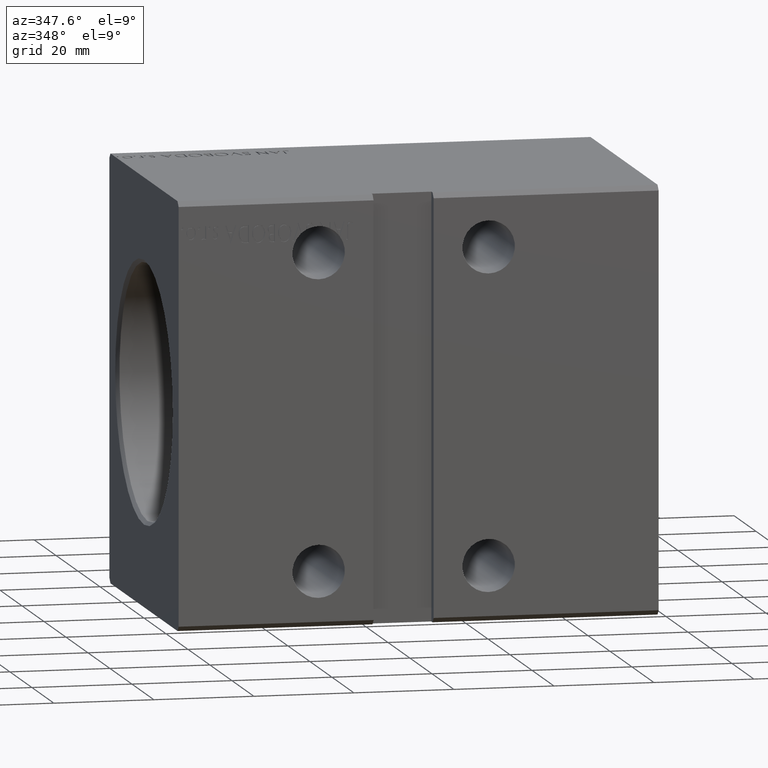
[diagram: clean part render]
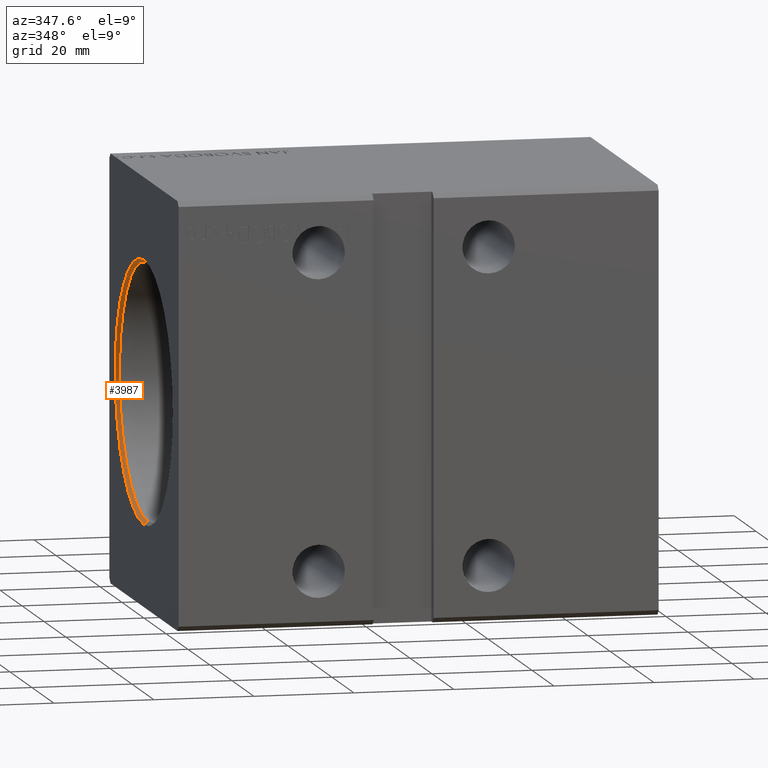
[diagram: same view with one face highlighted and labeled with its STEP entity id]
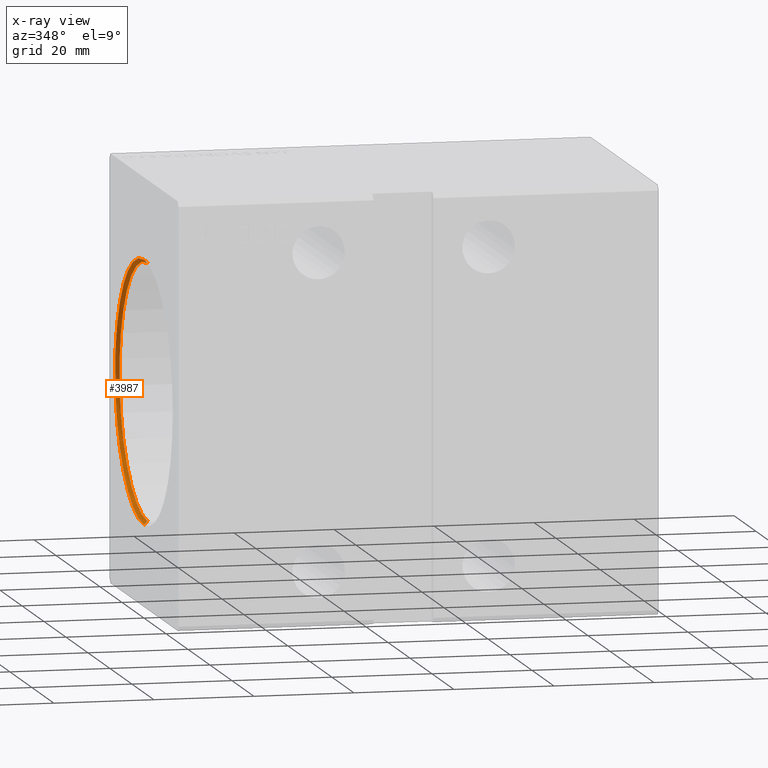
[diagram: x-ray of the same camera — body ghosted, the highlighted face saturated]
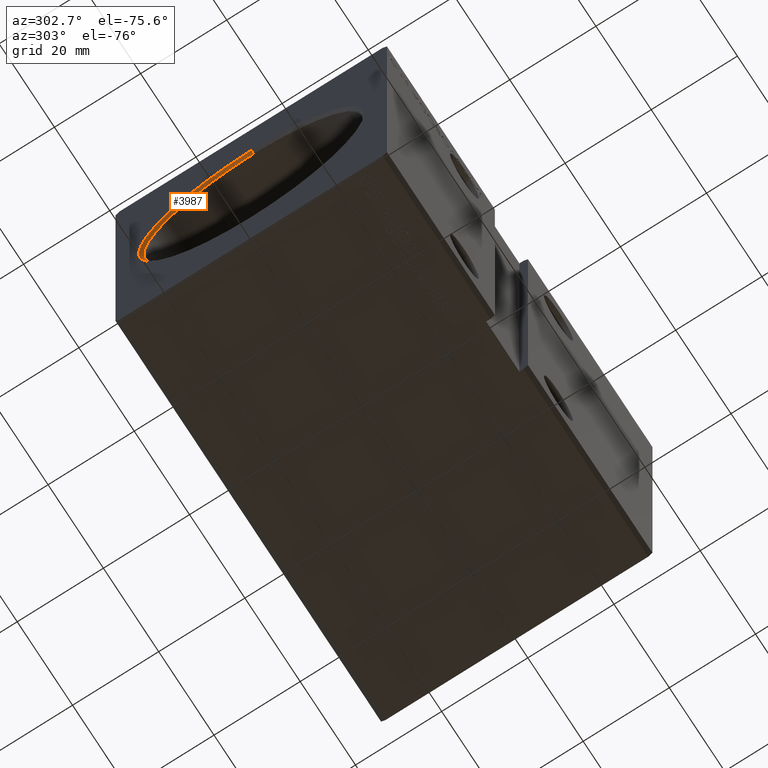
[diagram: same view with one face highlighted and labeled with its STEP entity id]
A machine part, auxiliary view. The second image highlights one B-rep face of the part: STEP entity #3987.
The next image is the same camera in x-ray: the body ghosted, the highlighted face saturated — about 0% of this face is hidden behind the body in this view.
A second angle (auxiliary view) of the same face is appended — the face is thin or edge-on in the first view.
In plain terms, the highlighted conical surface has half-angle 45 deg.
Its self-contained STEP definition (entity closure, byte-faithful):
#922 = EDGE_CURVE ( 'NONE', #9514, #21565, #30159, .T. ) ;
#1331 = CARTESIAN_POINT ( 'NONE',  ( 0.7000000000000061728, 3.122849337825750222E-15, -25.50000000000000000 ) ) ;
#1551 = VECTOR ( 'NONE', #21634, 1000.000000000000000 ) ;
#2486 = EDGE_CURVE ( 'NONE', #5618, #4419, #3492, .T. ) ;
#3272 = CIRCLE ( 'NONE', #25904, 26.20000000000001350 ) ;
#3492 = LINE ( 'NONE', #9944, #15140 ) ;
#3987 = ADVANCED_FACE ( 'NONE', ( #38883 ), #26804, .F. ) ;
#4419 = VERTEX_POINT ( 'NONE', #9467 ) ;
#5618 = VERTEX_POINT ( 'NONE', #1331 ) ;
#7749 = EDGE_CURVE ( 'NONE', #9514, #5618, #29488, .T. ) ;
#9467 = CARTESIAN_POINT ( 'NONE',  ( 0.000000000000000000, 3.208574613766067271E-15, -26.20000000000001350 ) ) ;
#9514 = VERTEX_POINT ( 'NONE', #19222 ) ;
#9944 = CARTESIAN_POINT ( 'NONE',  ( 0.7000000000000061728, 3.122849337825750222E-15, -25.50000000000000000 ) ) ;
#10609 = DIRECTION ( 'NONE',  ( 0.000000000000000000, 0.000000000000000000, -1.000000000000000000 ) ) ;
#11351 = DIRECTION ( 'NONE',  ( 1.000000000000000000, 0.000000000000000000, 0.000000000000000000 ) ) ;
#14202 = DIRECTION ( 'NONE',  ( 0.000000000000000000, 0.000000000000000000, 1.000000000000000000 ) ) ;
#15140 = VECTOR ( 'NONE', #15426, 1000.000000000000000 ) ;
#15426 = DIRECTION ( 'NONE',  ( -0.7071067811865422437, 8.659560562354996953E-17, -0.7071067811865527908 ) ) ;
#16876 = CARTESIAN_POINT ( 'NONE',  ( 0.7000000000000061728, 0.000000000000000000, 0.000000000000000000 ) ) ;
#19222 = CARTESIAN_POINT ( 'NONE',  ( 0.7000000000000061728, 0.000000000000000000, 25.50000000000000000 ) ) ;
#21565 = VERTEX_POINT ( 'NONE', #36820 ) ;
#21634 = DIRECTION ( 'NONE',  ( -0.7071067811865422437, 0.000000000000000000, 0.7071067811865527908 ) ) ;
#24283 = CARTESIAN_POINT ( 'NONE',  ( 0.7000000000000061728, 0.000000000000000000, 25.50000000000000000 ) ) ;
#24816 = ORIENTED_EDGE ( 'NONE', *, *, #2486, .F. ) ;
#25049 = EDGE_CURVE ( 'NONE', #4419, #21565, #3272, .T. ) ;
#25904 = AXIS2_PLACEMENT_3D ( 'NONE', #32987, #11351, #27128 ) ;
#26804 = CONICAL_SURFACE ( 'NONE', #29397, 25.50000000000000000, 0.7853981633974557175 ) ;
#26932 = ORIENTED_EDGE ( 'NONE', *, *, #922, .T. ) ;
#27128 = DIRECTION ( 'NONE',  ( 0.000000000000000000, 0.000000000000000000, -1.000000000000000000 ) ) ;
#29390 = DIRECTION ( 'NONE',  ( -1.000000000000000000, 0.000000000000000000, 0.000000000000000000 ) ) ;
#29397 = AXIS2_PLACEMENT_3D ( 'NONE', #35650, #29390, #14202 ) ;
#29488 = CIRCLE ( 'NONE', #38528, 25.50000000000000000 ) ;
#30159 = LINE ( 'NONE', #24283, #1551 ) ;
#32267 = ORIENTED_EDGE ( 'NONE', *, *, #7749, .F. ) ;
#32987 = CARTESIAN_POINT ( 'NONE',  ( 0.000000000000000000, 0.000000000000000000, 0.000000000000000000 ) ) ;
#35650 = CARTESIAN_POINT ( 'NONE',  ( 0.7000000000000061728, 0.000000000000000000, 0.000000000000000000 ) ) ;
#35891 = DIRECTION ( 'NONE',  ( -1.000000000000000000, 0.000000000000000000, 0.000000000000000000 ) ) ;
#36820 = CARTESIAN_POINT ( 'NONE',  ( 0.000000000000000000, 0.000000000000000000, 26.20000000000001350 ) ) ;
#36961 = EDGE_LOOP ( 'NONE', ( #24816, #32267, #26932, #38250 ) ) ;
#38250 = ORIENTED_EDGE ( 'NONE', *, *, #25049, .F. ) ;
#38528 = AXIS2_PLACEMENT_3D ( 'NONE', #16876, #35891, #10609 ) ;
#38883 = FACE_OUTER_BOUND ( 'NONE', #36961, .T. ) ;